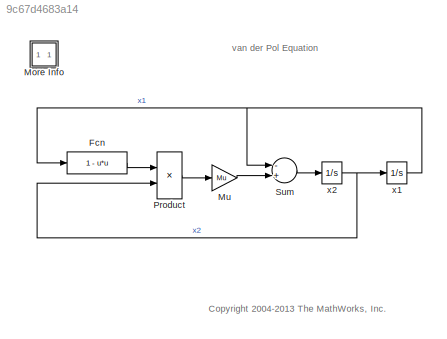
MODEL slx_9c67d4683a14
KIND model
CONFIG AbsTol = 1e-6
CONFIG FixedStep = auto
CONFIG MaxStep = auto
CONFIG MinStep = auto
CONFIG RelTol = 1e-3
CONFIG SampleTimeConstraint = Unconstrained
CONFIG Solver = ode45
CONFIG SolverMode = SingleTasking
CONFIG SolverName = ode45
CONFIG StartTime = 0.0
CONFIG StopTime = inf
BLOCK [Fcn] Fcn
  Expr = 1 - u*u
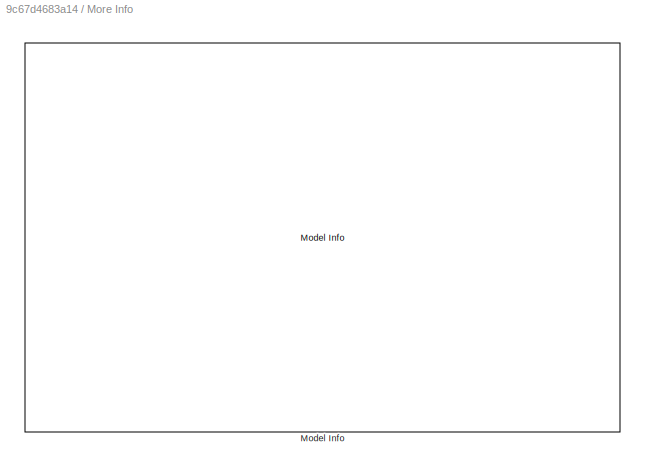
BLOCK [SubSystem] More Info
  Ports = []
  RequestExecContextInheritance = off
BLOCK [Reference] More Info/Model Info  REF=simulink/Model-Wide
Utilities/Model Info
  BlockCM = None
  DisplayStringWithTags = Model Description:\n-------------------\n\n%<Description>
  Frame = on
  HorizontalTextAlignment = Left
  LeftAlignmentValue = 0.02
  MaskDisplayString = Model Description:\n-------------------\n\nThe van der Pol Equation\n\nThis is a simulation of a nonlinear second order system.
  Ports = []
  SourceBlock = simulink/Model-Wide\nUtilities/Model Info
  SourceBlockDiagram = vdp
  SourceType = CMBlock
  TagMaxNumber = 20
BLOCK [Gain] Mu
  Gain = Mu
BLOCK [Product] Product
  Ports = [2, 1]
BLOCK [Sum] Sum
  Inputs = -+
  Ports = [2, 1]
BLOCK [Integrator] x1
  InitialCondition = x1_0
  Ports = [1, 1]
BLOCK [Integrator] x2
  InitialCondition = x2_0
  Ports = [1, 1]
ANNOTATION (root): <copyright redacted>
ANNOTATION (root): van der Pol Equation
LINE Fcn:1 -> Product:1
LINE Mu:1 -> Sum:2
LINE Product:1 -> Mu:1
LINE Sum:1 -> x2:1
NET x1:1 -> Fcn:1, Sum:1
NET x2:1 -> Product:2, x1:1
note: NET lines group one-source signal fan-out (src -> all destinations, sorted); 1:1 wires keep LINE
